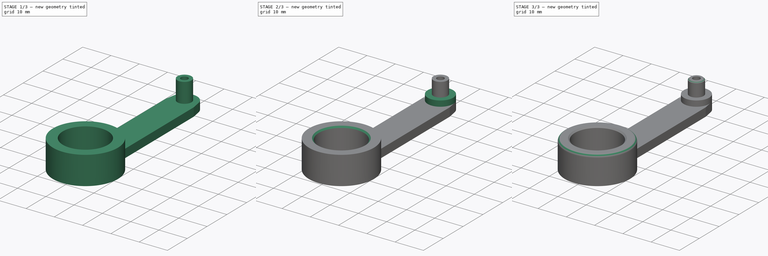
[diagram: build sequence overview — one tinted view per stage of 3, left to right]
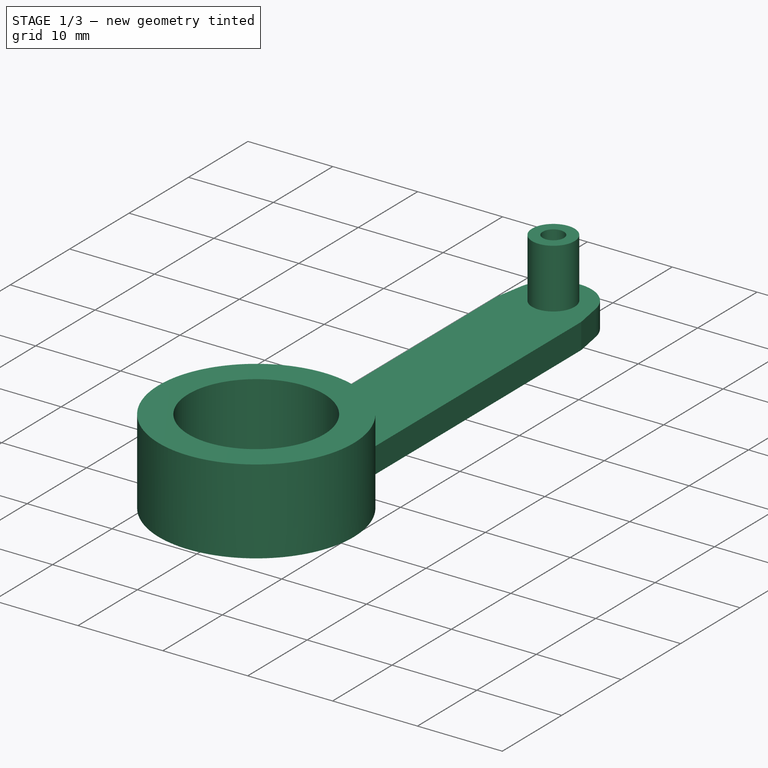
[diagram: stage 1 of 3 — iso view after this stage's code; geometry added in this stage tinted green]
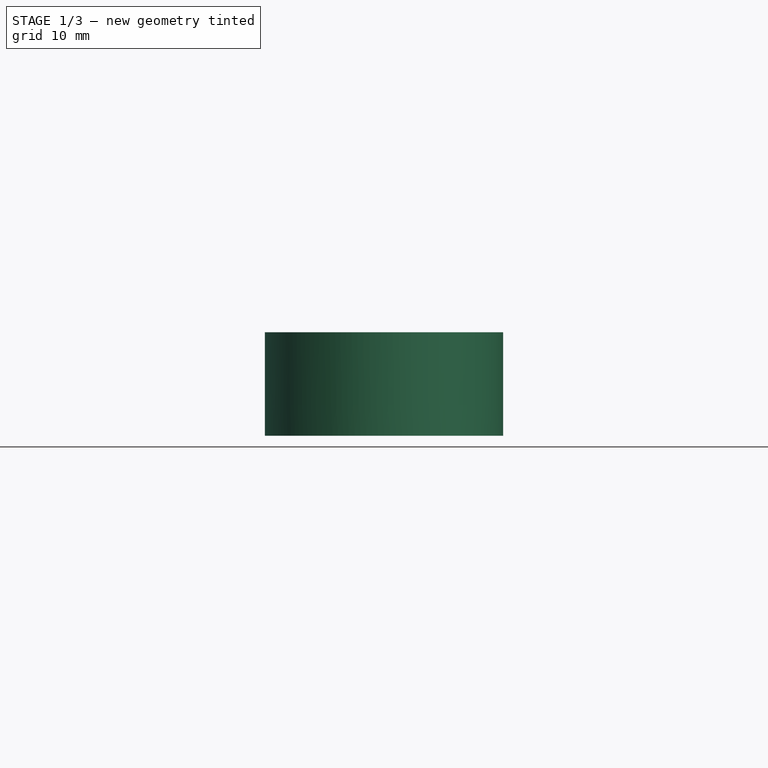
[diagram: stage 1 of 3 — front view after this stage's code; geometry added in this stage tinted green]
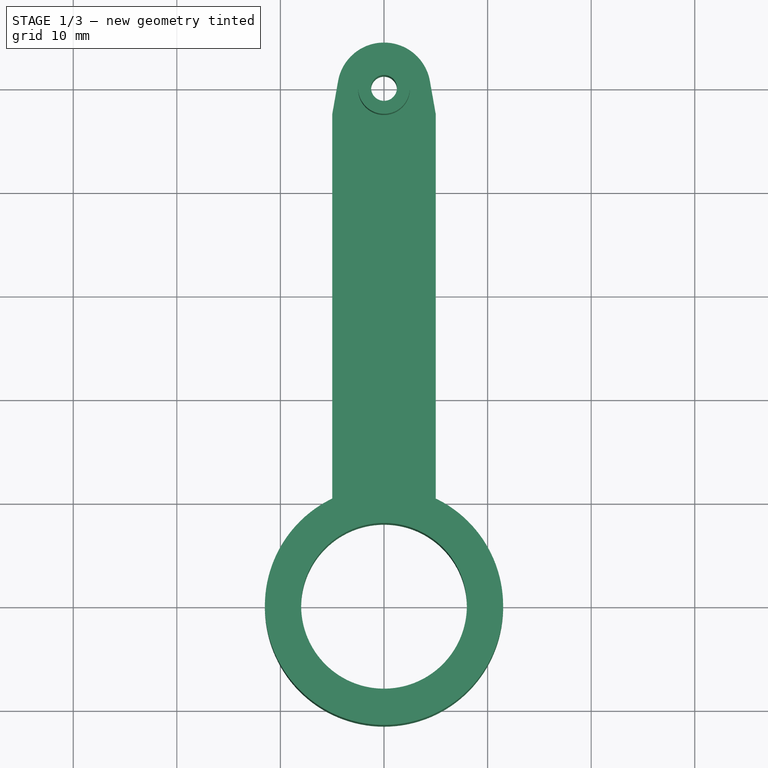
[diagram: stage 1 of 3 — top view after this stage's code; geometry added in this stage tinted green]
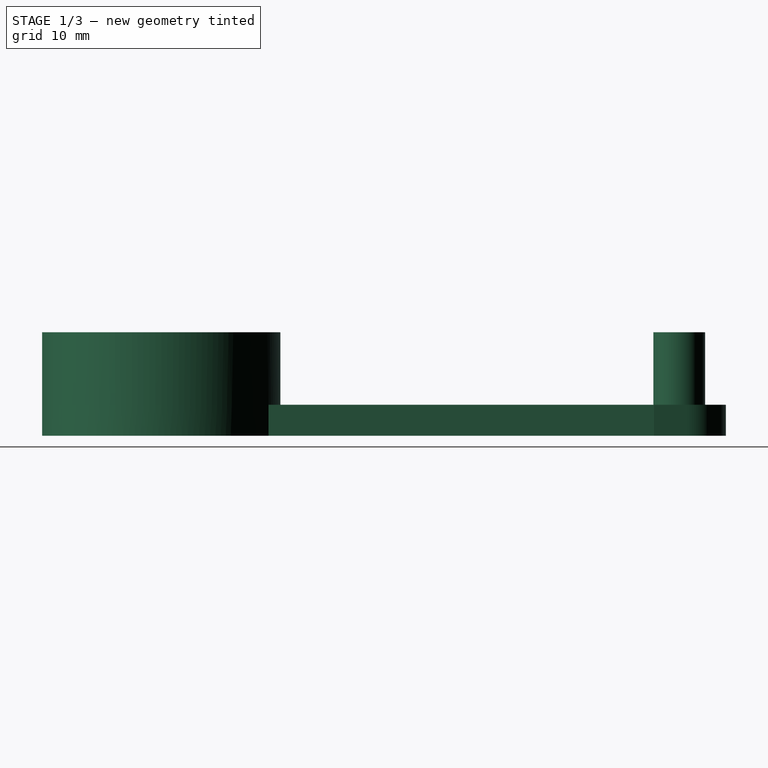
[diagram: stage 1 of 3 — right view after this stage's code; geometry added in this stage tinted green]
FCSTD DOCUMENT  (FreeCAD 0.19R24276 (Git))
Label: Shatun
License: All rights reserved
LicenseURL: http://en.wikipedia.org/wiki/All_rights_reserved
objects: Sketcher::SketchObject×3, PartDesign::Pad×3, PartDesign::Chamfer×2, PartDesign::Fillet×1, PartDesign::Body×1
note: 16 computed .brp shape members not serialized (recipe doc carries the construction recipe); baked Part::Feature solids carry a one-line shape summary decoded from their .brp

FEATURE [Sketcher::SketchObject] Sketch
  FullyConstrained = true
  MapMode = 5
  Support = -> [XY_Plane]
  sketch-geometry (17):
    g0: Circle CenterX=0 CenterY=0 CenterZ=0 NormalX=0 NormalY=0 NormalZ=1 AngleXU=0 Radius=8
    g1: ArcOfCircle CenterX=0 CenterY=0 CenterZ=0 NormalX=0 NormalY=0 NormalZ=1 AngleXU=0 Radius=11.5 StartAngle=2.02059 EndAngle=7.40418
    g2: ArcOfCircle CenterX=0 CenterY=50 CenterZ=0 NormalX=0 NormalY=0 NormalZ=1 AngleXU=0 Radius=4.5 StartAngle=0.174533 EndAngle=2.96706
    g3: Circle CenterX=0 CenterY=50 CenterZ=0 NormalX=0 NormalY=0 NormalZ=1 AngleXU=0 Radius=1.25
    g4: LineSegment StartX=-5 StartY=50 StartZ=0 EndX=5 EndY=50 EndZ=0
    g5: LineSegment StartX=5 StartY=50 StartZ=0 EndX=5 EndY=10.3562 EndZ=0
    g6: LineSegment StartX=-5 StartY=10.3562 StartZ=0 EndX=-5 EndY=50 EndZ=0
    g7: LineSegment StartX=0 StartY=0 StartZ=0 EndX=0 EndY=10.3562 EndZ=0
    g8: LineSegment StartX=-5 StartY=50 StartZ=0 EndX=0 EndY=50 EndZ=0
    g9: LineSegment StartX=0 StartY=50 StartZ=0 EndX=-4.43163 EndY=50.7814 EndZ=0
    g10: LineSegment StartX=-4.43163 StartY=50.7814 StartZ=0 EndX=-5 EndY=47.5581 EndZ=0
    g11: LineSegment StartX=4.43163 StartY=50.7814 StartZ=0 EndX=5 EndY=47.5581 EndZ=0
    g12: LineSegment StartX=0 StartY=50 StartZ=0 EndX=4.43163 EndY=50.7814 EndZ=0
    g13: LineSegment StartX=5 StartY=10.3562 StartZ=0 EndX=5 EndY=47.5581 EndZ=0
    g14: LineSegment StartX=-5 StartY=10.3562 StartZ=0 EndX=-5 EndY=47.5581 EndZ=0
    g15: LineSegment StartX=-5 StartY=47.5581 StartZ=0 EndX=-4.43163 EndY=50.7814 EndZ=0
    g16: LineSegment StartX=5 StartY=47.5581 StartZ=0 EndX=4.43163 EndY=50.7814 EndZ=0
  constraints (43):
    c: Coincident(g0,g-1)
    c: Diameter(g0) = 16
    c: Coincident(g1,g-1)
    c: Diameter(g1) = 23
    c: PointOnObject(g2,g-2)
    c: DistanceY(g-1,g2) = 50
    c: Diameter(g2) = 9
    c: Coincident(g3,g2)
    c: Diameter(g3) = 2.5
    c: Coincident(g4,g5)
    c: Coincident(g6,g4)
    c: Horizontal(g4)
    c: Vertical(g5)
    c: Vertical(g6)
    c: Coincident(g7,g-1)
    c: Symmetric(g6,g5,g7)
    c: DistanceX(g6,g5) = 10
    c: Coincident(g8,g4)
    c: Coincident(g8,g2)
    c: Horizontal(g8)
    c: Vertical(g7)
    c: Coincident(g9,g2)
    c: Coincident(g10,g9)
    c: Perpendicular(g9,g10)
    c: Angle(g6,g10) = 2.96706
    c: PointOnObject(g11,g5)
    c: Coincident(g12,g2)
    c: Coincident(g12,g11)
    c: Perpendicular(g11,g12)
    c: Angle(g11,g5) = 2.96706
    c: PointOnObject(g10,g6)
    c: Coincident(g1,g6)
    c: Coincident(g1,g5)
    c: Coincident(g13,g1)
    c: Coincident(g14,g1)
    c: Coincident(g15,g10)
    c: Coincident(g16,g11)
    c: Coincident(g13,g16)
    c: Coincident(g14,g15)
    c: Coincident(g15,g9)
    c: Coincident(g16,g11)
    c: Coincident(g2,g11)
    c: Coincident(g2,g9)
FEATURE [PartDesign::Pad] Pad  label="Pad_h3"
  Direction = (1,1,1)
  Length = 3
  Length2 = 100
  Profile = -> Sketch
  Type = 0
FEATURE [Sketcher::SketchObject] Sketch001  label="Sketch001_d5_d23"
  FullyConstrained = true
  MapMode = 5
  Placement = pos=(0,0,3) rot=(0,0,1;0rad)
  Support = -> [Pad]
  sketch-geometry (4):
    g0: Circle CenterX=0 CenterY=0 CenterZ=0 NormalX=0 NormalY=0 NormalZ=1 AngleXU=0 Radius=8
    g1: Circle CenterX=0 CenterY=0 CenterZ=0 NormalX=0 NormalY=0 NormalZ=1 AngleXU=0 Radius=11.5
    g2: Circle CenterX=0 CenterY=50 CenterZ=0 NormalX=0 NormalY=0 NormalZ=1 AngleXU=0 Radius=2.5
    g3: Circle CenterX=0 CenterY=50 CenterZ=0 NormalX=0 NormalY=0 NormalZ=1 AngleXU=0 Radius=1.25
  constraints (9):
    c: Coincident(g0,g-1)
    c: Coincident(g1,g-1)
    c: Diameter(g0) = 16
    c: Diameter(g1) = 23
    c: PointOnObject(g2,g-2)
    c: DistanceY(g-1,g2) = 50
    c: Diameter(g2) = 5
    c: Coincident(g3,g2)
    c: Diameter(g3) = 2.5
FEATURE [PartDesign::Pad] Pad001  label="Pad001_h7"
  BaseFeature = -> Pad
  Direction = (1,1,1)
  Length = 7
  Length2 = 100
  Profile = -> Sketch001
  Type = 0
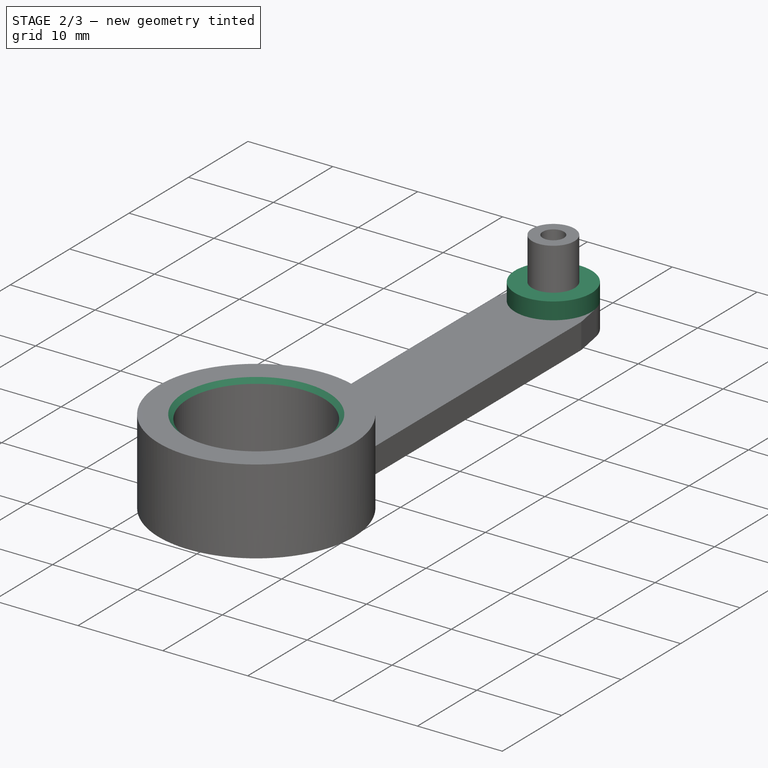
[diagram: stage 2 of 3 — iso view after this stage's code; geometry added in this stage tinted green]
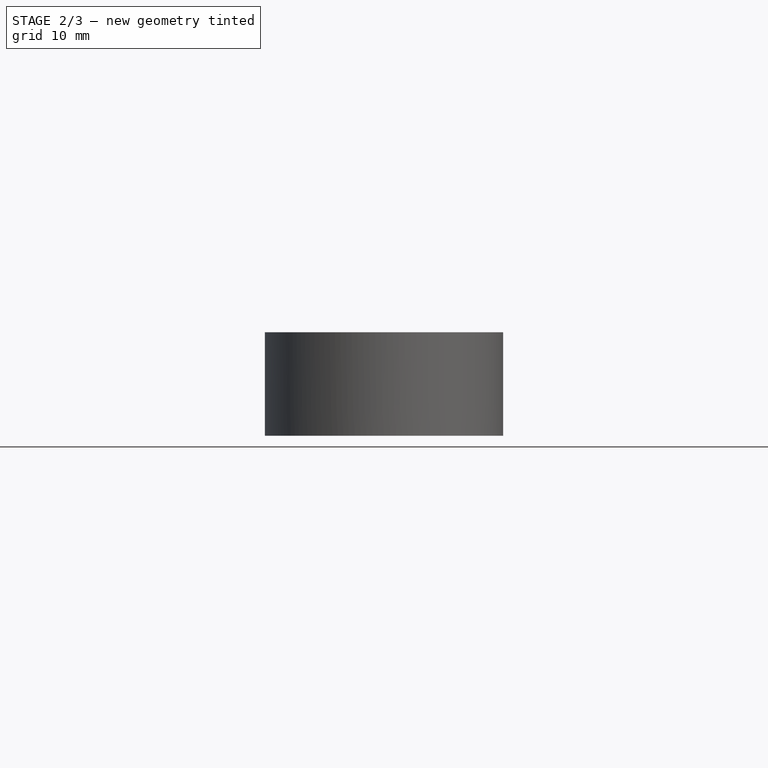
[diagram: stage 2 of 3 — front view after this stage's code; geometry added in this stage tinted green]
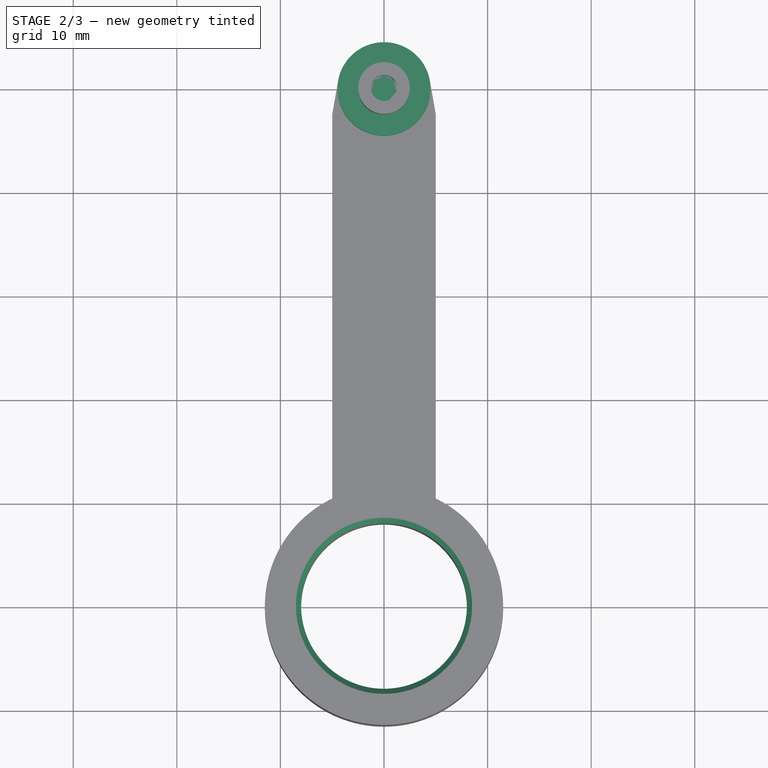
[diagram: stage 2 of 3 — top view after this stage's code; geometry added in this stage tinted green]
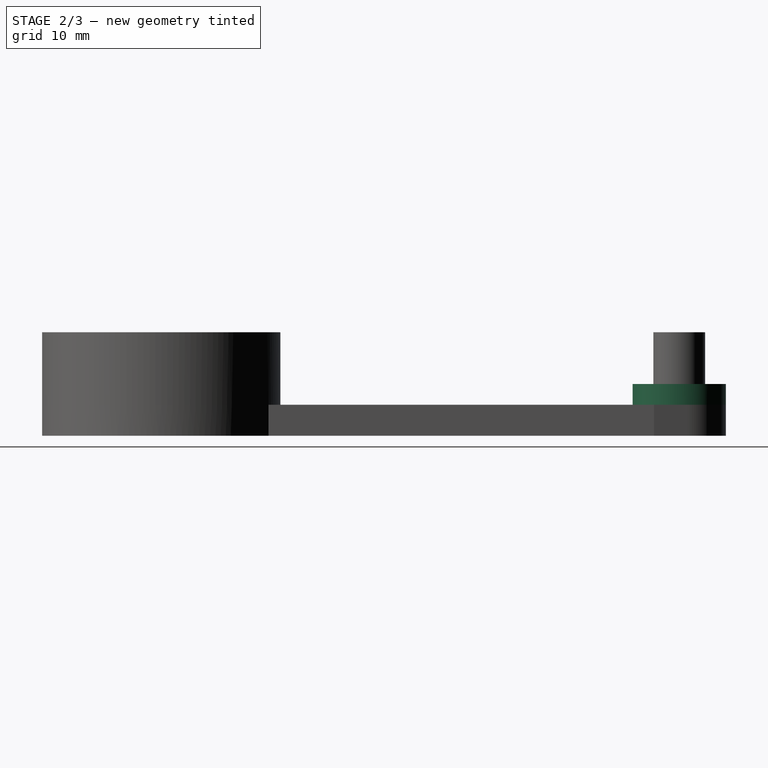
[diagram: stage 2 of 3 — right view after this stage's code; geometry added in this stage tinted green]
FEATURE [Sketcher::SketchObject] Sketch002  label="Sketch002_d9"
  FullyConstrained = true
  MapMode = 5
  Placement = pos=(0,0,3) rot=(0,0,1;0rad)
  Support = -> [Pad001]
  sketch-geometry (1):
    g0: Circle CenterX=0 CenterY=50 CenterZ=0 NormalX=0 NormalY=0 NormalZ=1 AngleXU=0 Radius=4.5
  constraints (3):
    c: PointOnObject(g0,g-2)
    c: DistanceY(g-1,g0) = 50
    c: Diameter(g0) = 9
FEATURE [PartDesign::Pad] Pad002  label="Pad002_h2"
  BaseFeature = -> Pad001
  Direction = (1,1,1)
  Length = 2
  Length2 = 100
  Profile = -> Sketch002
  Type = 0
FEATURE [PartDesign::Chamfer] Chamfer
  Angle = 45
  Base = -> Pad002 [Edge33]
  BaseFeature = -> Pad002
  ChamferType = 0
  FlipDirection = false
  Size = 0.5
  Size2 = 1
  SupportTransform = false
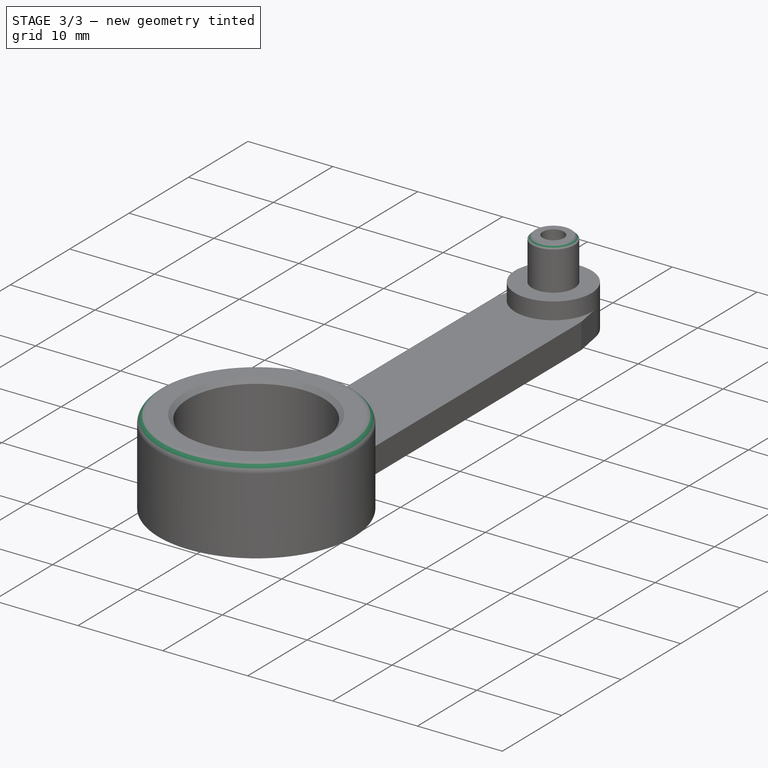
[diagram: stage 3 of 3 — iso view after this stage's code; geometry added in this stage tinted green]
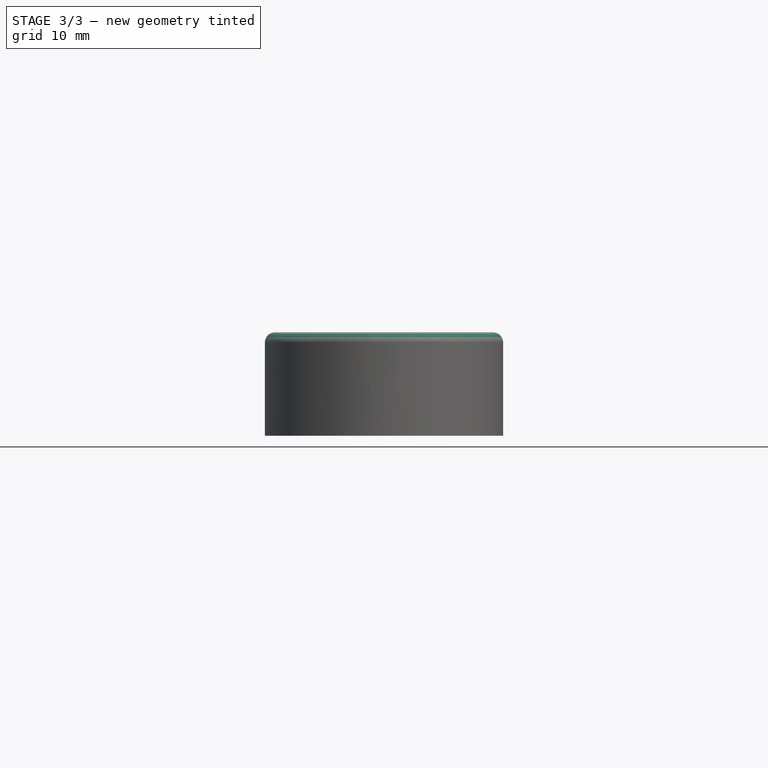
[diagram: stage 3 of 3 — front view after this stage's code; geometry added in this stage tinted green]
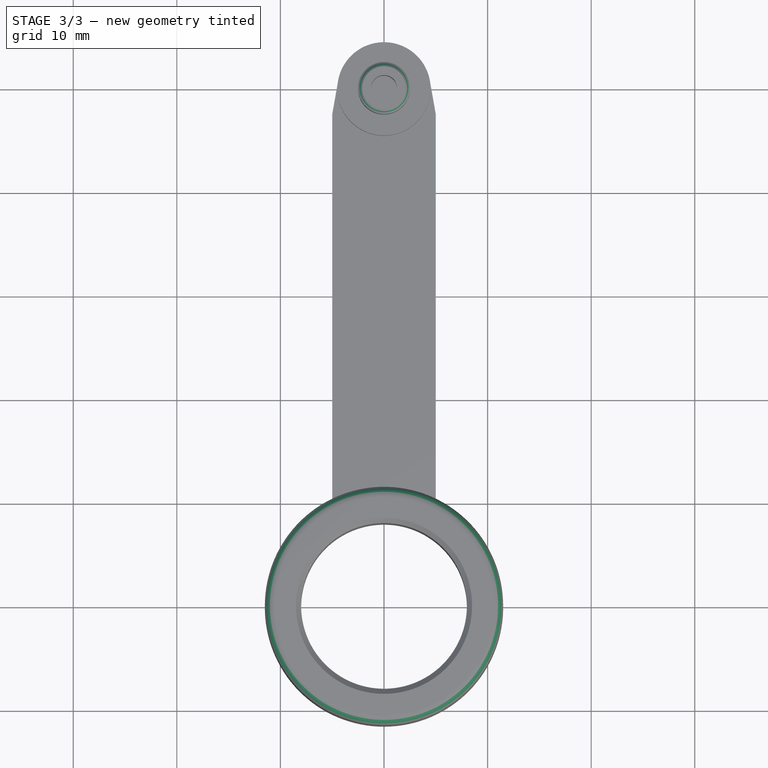
[diagram: stage 3 of 3 — top view after this stage's code; geometry added in this stage tinted green]
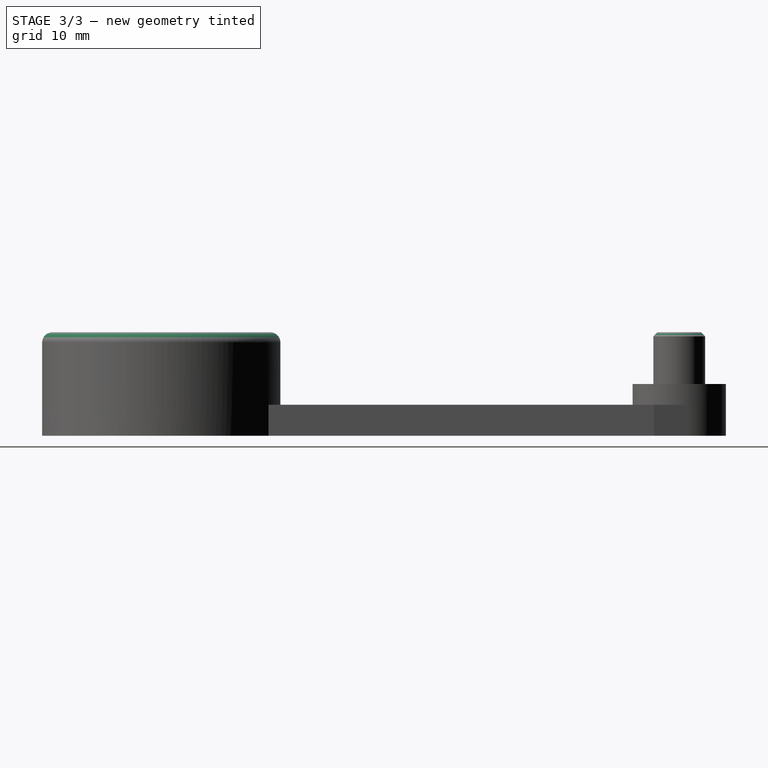
[diagram: stage 3 of 3 — right view after this stage's code; geometry added in this stage tinted green]
FEATURE [PartDesign::Chamfer] Chamfer001
  Angle = 45
  Base = -> Chamfer [Edge39]
  BaseFeature = -> Chamfer
  ChamferType = 0
  FlipDirection = false
  Size = 0.4
  Size2 = 1
  SupportTransform = false
FEATURE [PartDesign::Fillet] Fillet
  Base = -> Chamfer001 [Edge33]
  BaseFeature = -> Chamfer001
  Radius = 1
  SupportTransform = false
FEATURE [PartDesign::Body] Body
  Group = -> [Sketch,Pad,Sketch001,Pad001,Sketch002,Pad002,Chamfer,Chamfer001,Fillet]
  Origin = -> Origin
  Tip = -> Fillet
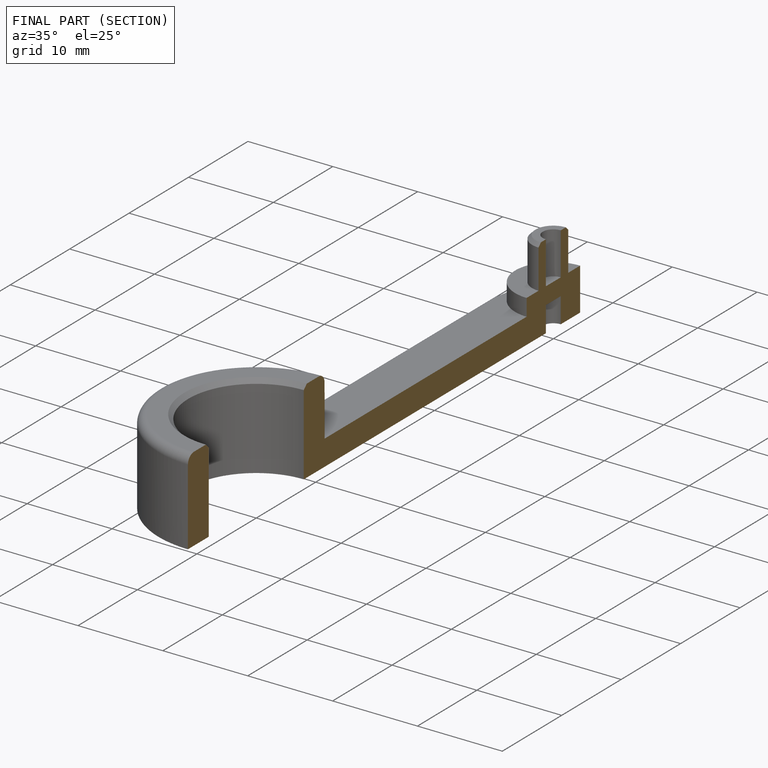
[diagram: finished part — half-section view (interior)]
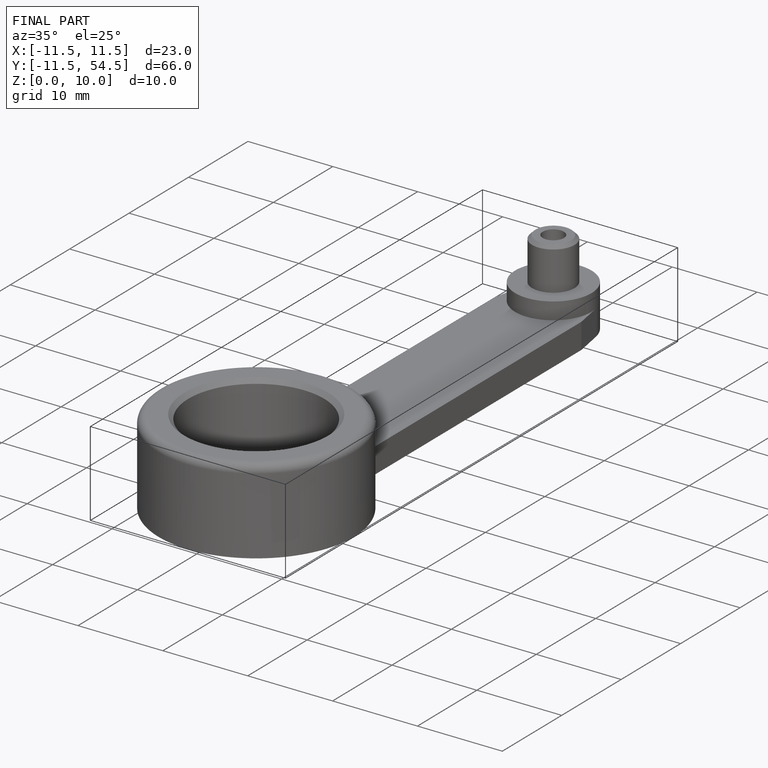
[diagram: finished part — iso view with bounding-box wireframe]
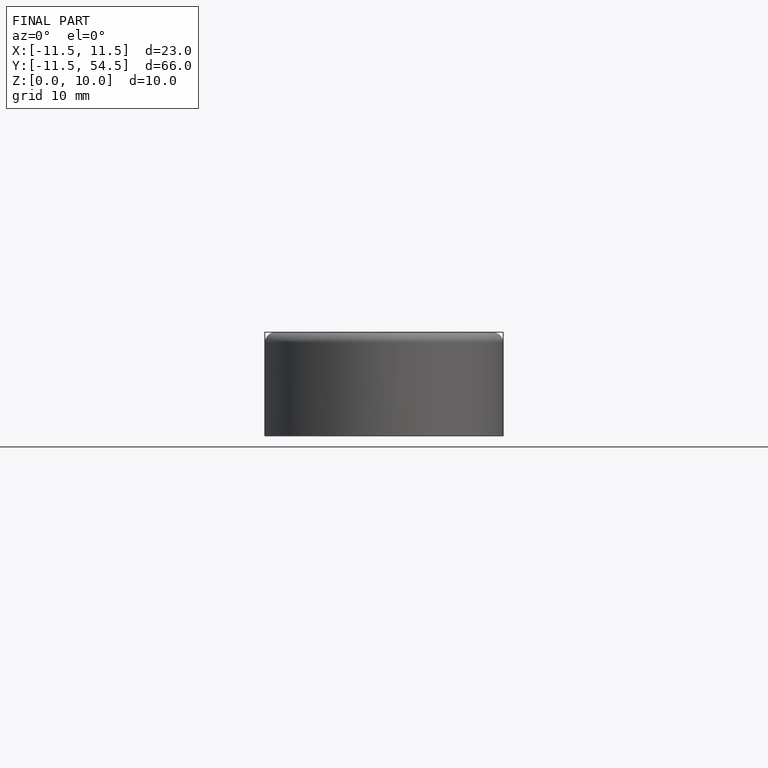
[diagram: finished part — front view with bounding-box wireframe]
